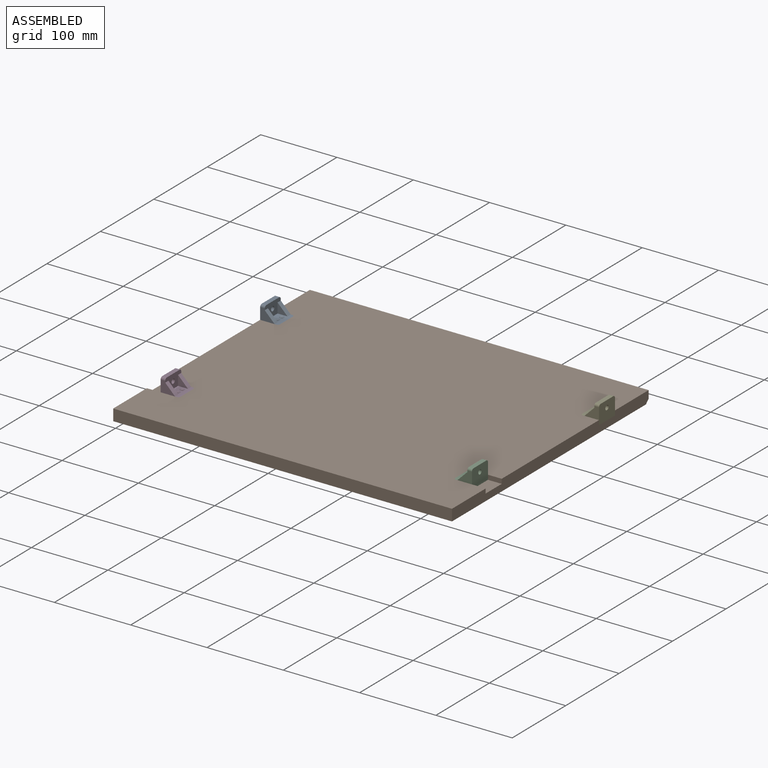
[diagram: assembled view]
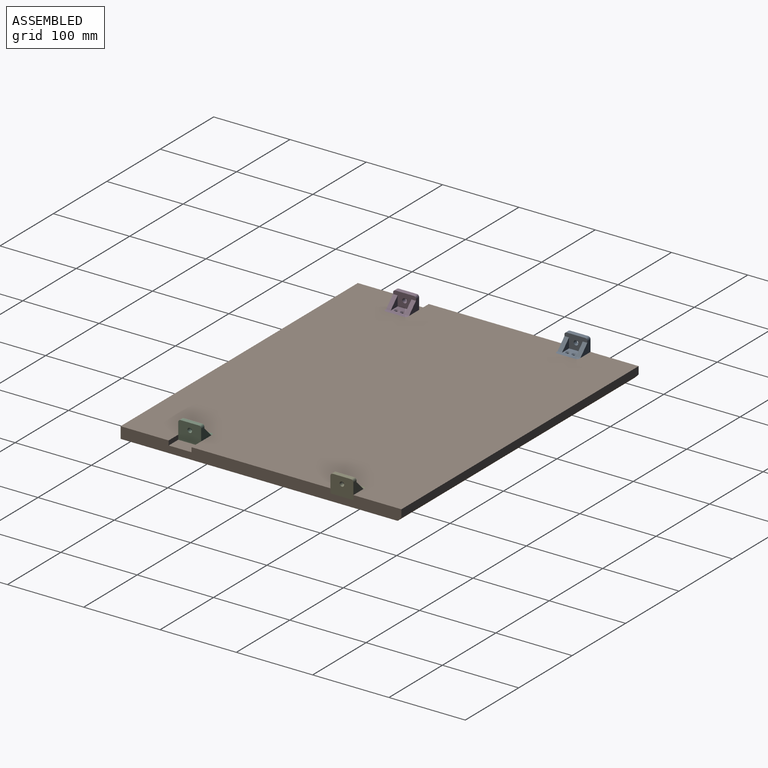
[diagram: assembled view, second angle]
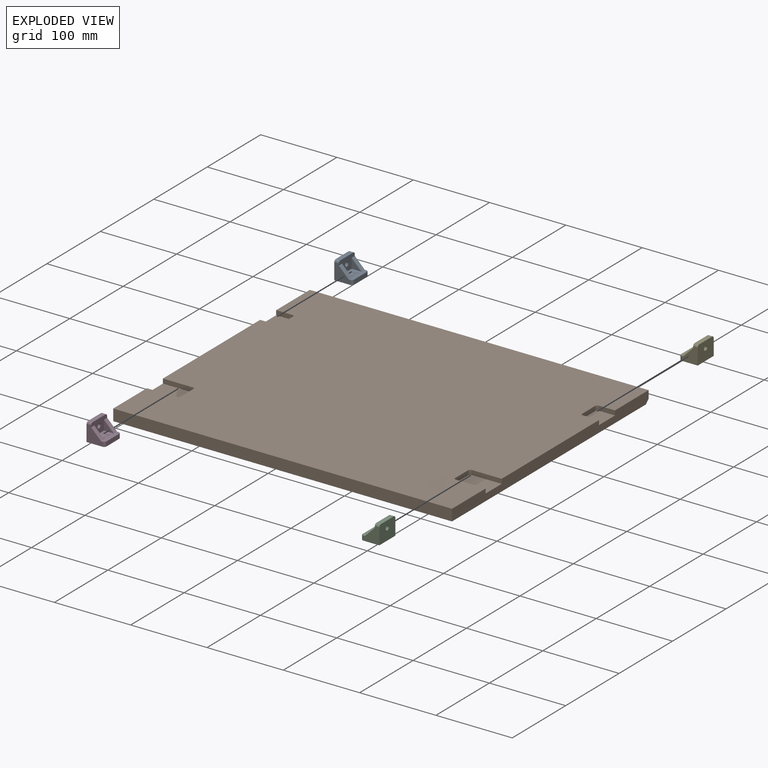
[diagram: exploded view]
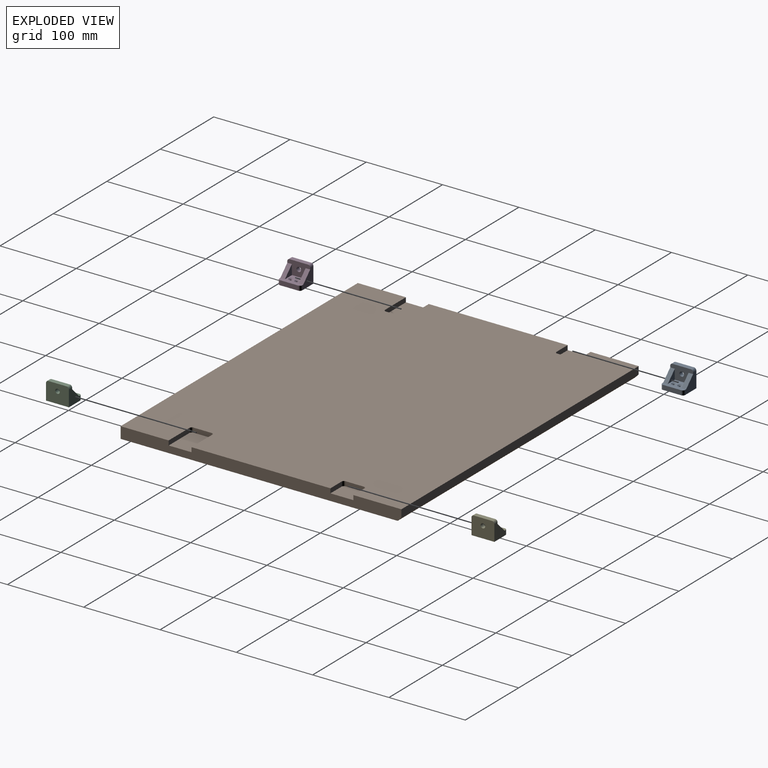
[diagram: exploded view, second angle]
ASSEMBLY  parts=5 mates=12
PART A: 21 faces, bbox 30x24x24 mm
  f0: plane 30x18mm, normal (0,1,0), area 323.6mm2, adj f1,f2,f3,f8,f11,f12,f13,f14
  f1: plane 30x18mm, normal (0,0,1), area 351.9mm2, adj f0,f2,f3,f4,f5,f13,f14,f15
  f2: plane 21x21mm, normal (-1,0,0), area 300.5mm2, adj f0,f1,f6,f10,f15,f18,f20
  f3: plane 21x21mm, normal (1,0,0), area 300.5mm2, adj f0,f1,f6,f10,f13,f17,f19
  f4: plane 24x6mm, normal (0,1,0), area 144mm2, adj f1,f6,f19,f20
  f5: cylinder r=3mm len=6mm, axis (0,0,-1), area 113.1mm2, adj f1,f6
  f6: plane 30x24mm, normal (0,0,-1), area 687.9mm2, adj f2,f3,f4,f5,f10,f19,f20
  f7: cylinder r=1.5mm len=4.5mm, axis (0,1,0), area 42.4mm2, adj f10,f12
  f8: plane 24x6mm, normal (0,0,1), area 144mm2, adj f0,f10,f17,f18
  f9: cylinder r=1.5mm len=4.5mm, axis (0,1,0), area 42.4mm2, adj f10,f11
  f10: plane 30x24mm, normal (0,-1,0), area 702mm2, adj f2,f3,f6,f7,f8,f9,f17,f18
  f11: cone r=3mm half-angle=45deg, axis (0,1,0), area 30mm2, adj f0,f9
  f12: cone r=3mm half-angle=45deg, axis (0,1,0), area 30mm2, adj f0,f7
  f13: plane 13x13mm, normal (0,0.71,0.71), area 110.3mm2, adj f0,f1,f3,f14
  f14: plane 13x13mm, normal (-1,0,0), area 84.5mm2, adj f0,f1,f13
  f15: plane 13x13mm, normal (0,0.71,0.71), area 110.3mm2, adj f0,f1,f2,f16
  f16: plane 13x13mm, normal (1,0,0), area 84.5mm2, adj f0,f1,f15
  f17: cylinder r=3mm len=6mm, axis (0,1,0), area 28.3mm2, adj f0,f3,f8,f10
  f18: cylinder r=3mm len=6mm, axis (0,-1,0), area 28.3mm2, adj f0,f2,f8,f10
  f19: cylinder r=3mm len=6mm, axis (0,0,1), area 28.3mm2, adj f1,f3,f4,f6
  f20: cylinder r=3mm len=6mm, axis (0,0,-1), area 28.3mm2, adj f1,f2,f4,f6
PART B: 39 faces, bbox 444x368x15 mm
  f0: plane 368x15mm, normal (-1,0,0), area 5034.4mm2, adj f1,f2,f4,f5,f6,f8,f10,f12
  f1: plane 444x368mm, normal (0,0,1), area 159447.5mm2, adj f0,f2,f3,f4,f15,f16,f17,f18
  f2: plane 444x15mm, normal (0,-1,0), area 6660mm2, adj f0,f1,f3,f5
  f3: plane 368x15mm, normal (1,0,0), area 5147.5mm2, adj f1,f2,f4,f5,f14,f21,f25,f26
  f4: plane 444x10mm, normal (0,1,0), area 4440mm2, adj f0,f1,f3,f14
  f5: plane 444x363mm, normal (0,0,-1), area 161172mm2, adj f0,f2,f3,f14
  f6: cylinder r=3mm len=20mm, axis (-1,0,0), area 377mm2, adj f0,f7
  f7: plane 6x6mm, normal (-1,0,0), area 28.3mm2, adj f6
  f8: cylinder r=3mm len=20mm, axis (-1,0,0), area 377mm2, adj f0,f9
  f9: plane 6x6mm, normal (-1,0,0), area 28.3mm2, adj f8
  f10: cylinder r=3mm len=20mm, axis (-1,0,0), area 377mm2, adj f0,f11
  f11: plane 6x6mm, normal (-1,0,0), area 28.3mm2, adj f10
  f12: cylinder r=3mm len=20mm, axis (-1,0,0), area 377mm2, adj f0,f13
  f13: plane 6x6mm, normal (-1,0,0), area 28.3mm2, adj f12
  f14: plane 444x5mm, normal (0,0.71,-0.71), area 3139.6mm2, adj f0,f3,f4,f5
  f15: plane 21x6mm, normal (0,-1,0), area 126mm2, adj f0,f1,f19,f20
  f16: plane 21x6mm, normal (0,1,0), area 126mm2, adj f0,f1,f17,f20
  f17: cylinder r=3mm len=6mm, axis (0,0,1), area 28.3mm2, adj f1,f16,f18,f20
  f18: plane 24x6mm, normal (-1,0,0), area 144mm2, adj f1,f17,f19,f20
  f19: cylinder r=3mm len=6mm, axis (0,0,1), area 28.3mm2, adj f1,f15,f18,f20
  f20: plane 30x24mm, normal (0,0,1), area 716.1mm2, adj f0,f15,f16,f17,f18,f19
  f21: plane 39x6mm, normal (0,-1,0), area 234mm2, adj f1,f3,f22,f26
  f22: cylinder r=3mm len=6mm, axis (0,0,1), area 28.3mm2, adj f1,f21,f23,f26
  f23: plane 24x6mm, normal (1,0,0), area 144mm2, adj f1,f22,f24,f26
  f24: cylinder r=3mm len=6mm, axis (0,0,1), area 28.3mm2, adj f1,f23,f25,f26
  f25: plane 39x6mm, normal (0,1,0), area 234mm2, adj f1,f3,f24,f26
  f26: plane 42x30mm, normal (0,0,1), area 1256.1mm2, adj f3,f21,f22,f23,f24,f25
  f27: plane 21x6mm, normal (0,-1,0), area 126mm2, adj f1,f3,f28,f32
  f28: cylinder r=3mm len=6mm, axis (0,0,1), area 28.3mm2, adj f1,f27,f29,f32
  f29: plane 24x6mm, normal (1,0,0), area 144mm2, adj f1,f28,f30,f32
  f30: cylinder r=3mm len=6mm, axis (0,0,1), area 28.3mm2, adj f1,f29,f31,f32
  f31: plane 21x6mm, normal (0,1,0), area 126mm2, adj f1,f3,f30,f32
  f32: plane 30x24mm, normal (0,0,1), area 716.1mm2, adj f3,f27,f28,f29,f30,f31
  f33: plane 39x6mm, normal (0,-1,0), area 234mm2, adj f0,f1,f37,f38
  f34: plane 39x6mm, normal (0,1,0), area 234mm2, adj f0,f1,f35,f38
  f35: cylinder r=3mm len=6mm, axis (0,0,1), area 28.3mm2, adj f1,f34,f36,f38
  f36: plane 24x6mm, normal (-1,0,0), area 144mm2, adj f1,f35,f37,f38
  f37: cylinder r=3mm len=6mm, axis (0,0,1), area 28.3mm2, adj f1,f33,f36,f38
  f38: plane 42x30mm, normal (0,0,1), area 1256.1mm2, adj f0,f33,f34,f35,f36,f37
PART C: same geometry as A
PART D: same geometry as A
PART E: same geometry as A
PLACE A rot(axis=(0.58,0.58,0.58),120deg) t=(-1.57,272.97,-36.69)mm
PLACE B t=(-1.57,-2.03,-51.69)mm
PLACE C rot(axis=(0.58,-0.58,-0.58),120deg) t=(424.43,90.97,-36.69)mm
PLACE D rot(axis=(0.58,0.58,0.58),120deg) t=(16.43,60.97,-36.69)mm
PLACE E rot(axis=(0.58,-0.58,-0.58),120deg) t=(442.43,302.97,-36.69)mm
MATE planar A.f2 <-> B.f16  axis (0,-1,0) through (6.64,272.97,-34.48)mm
MATE planar E.f10 <-> B.f32  axis (0,0,-1) through (430.56,287.97,-42.69)mm
MATE planar A.f8 <-> B.f18  axis (1,0,0) through (22.43,287.97,-39.69)mm
MATE planar E.f2 <-> B.f27  axis (0,1,0) through (434.23,302.97,-34.48)mm
MATE planar D.f10 <-> B.f38  axis (0,0,-1) through (28.31,75.97,-42.69)mm
MATE planar D.f2 <-> B.f34  axis (0,-1,0) through (24.64,60.97,-34.48)mm
MATE planar D.f8 <-> B.f36  axis (1,0,0) through (40.43,75.97,-39.69)mm
MATE planar C.f10 <-> B.f26  axis (0,0,-1) through (412.56,75.97,-42.69)mm
MATE planar E.f8 <-> B.f29  axis (-1,0,0) through (418.43,287.97,-39.69)mm
MATE planar A.f10 <-> B.f20  axis (0,0,-1) through (10.31,287.97,-42.69)mm
MATE planar C.f8 <-> B.f23  axis (-1,0,0) through (400.43,75.97,-39.69)mm
MATE planar C.f2 <-> B.f21  axis (0,1,0) through (416.23,90.97,-34.48)mm
